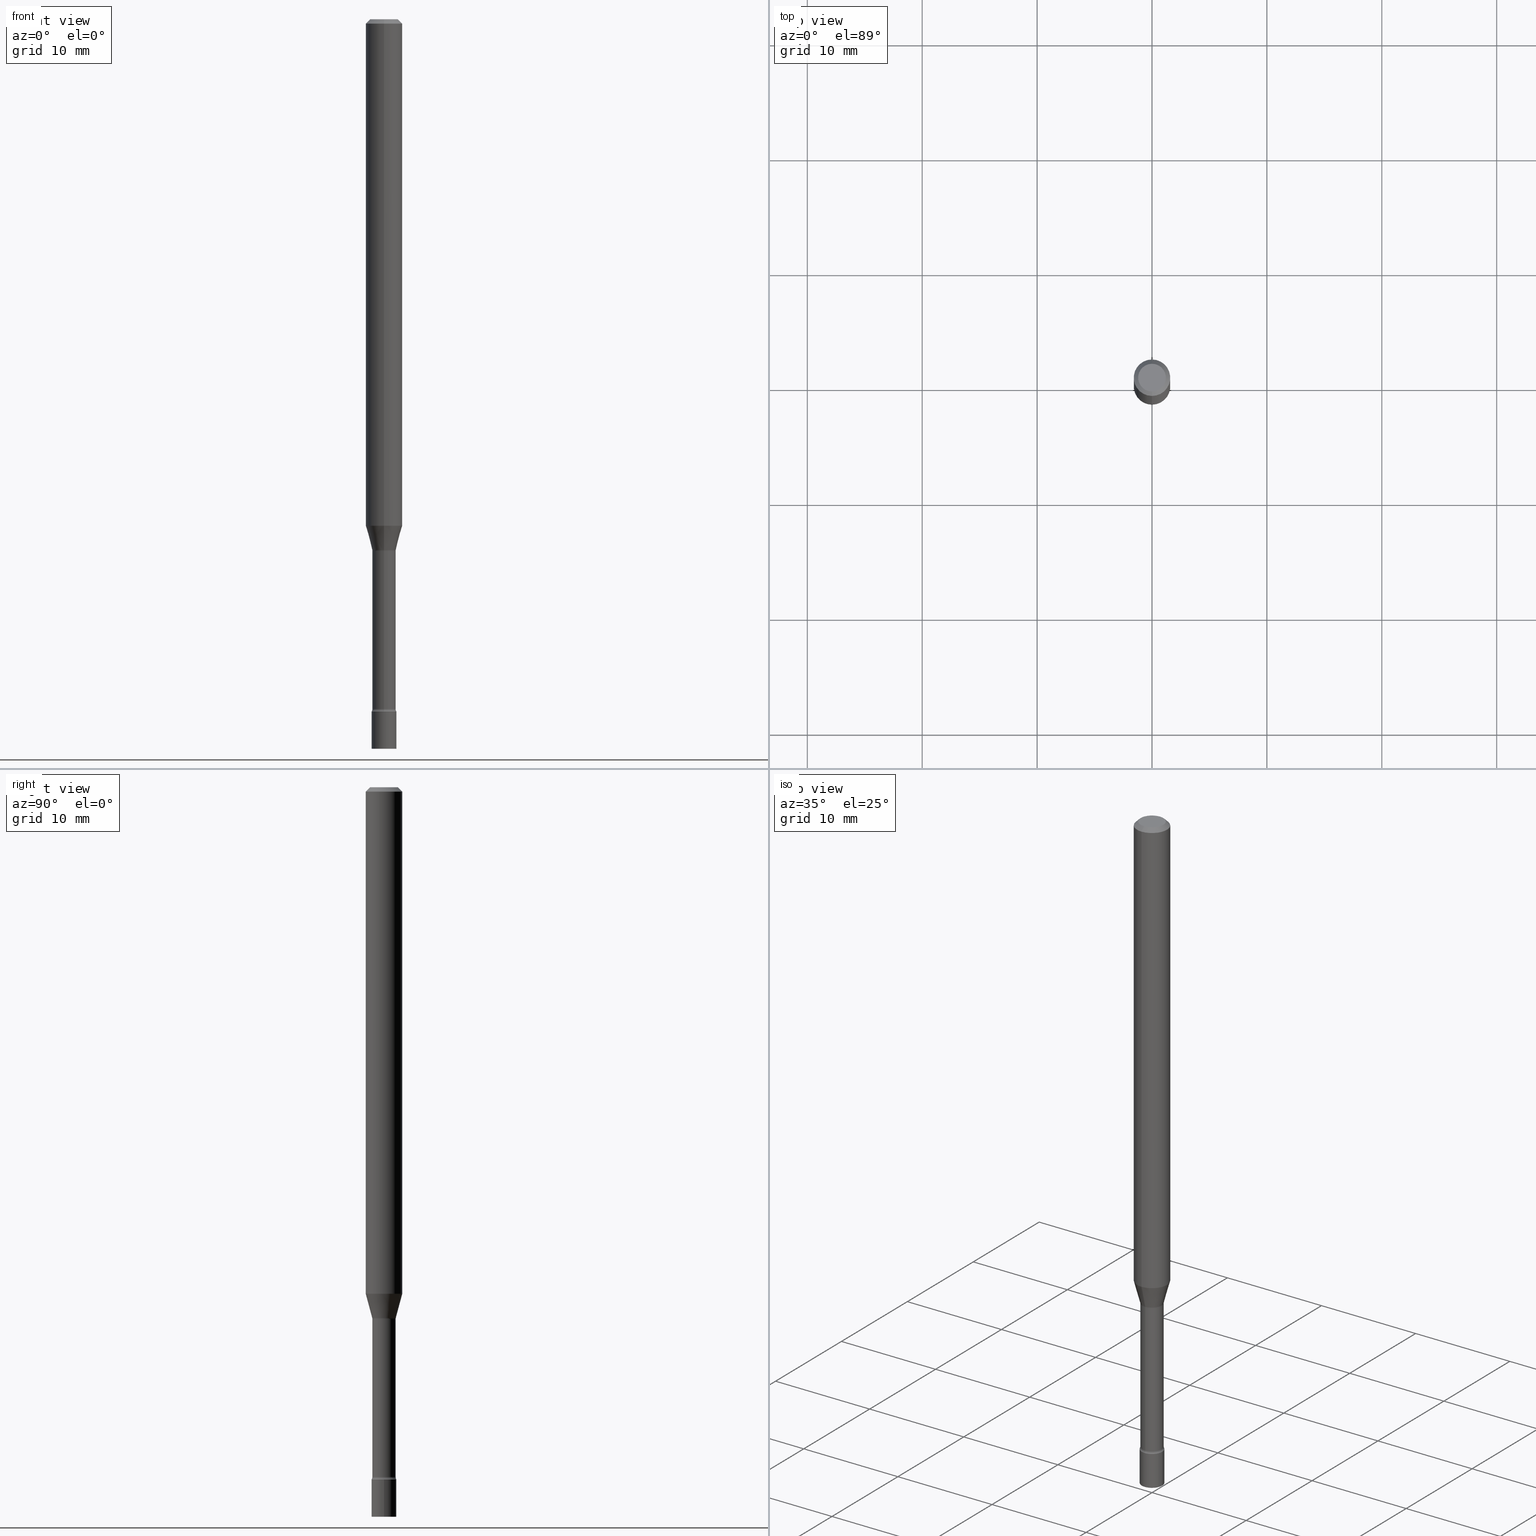
[diagram: canonical four-view strip — front | top / right | iso, engineering-drawing reading convention]
A machine part, canonical four-view strip (front | top / right | iso — engineering-drawing reading convention). The complete STEP part file that produces these views, byte-faithful:
ISO-10303-21;
HEADER;
FILE_DESCRIPTION (( 'STEP AP203' ),
    '1' );
FILE_NAME ('03581.STEP',
    '2024-03-08T21:55:53',
    ( '' ),
    ( '' ),
    'SwSTEP 2.0',
    'SolidWorks 2023',
    '' );
FILE_SCHEMA (( 'CONFIG_CONTROL_DESIGN' ));
ENDSEC;

DATA;
#1 =( GEOMETRIC_REPRESENTATION_CONTEXT ( 3 ) GLOBAL_UNCERTAINTY_ASSIGNED_CONTEXT ( ( #438 ) ) GLOBAL_UNIT_ASSIGNED_CONTEXT ( ( #107, #332, #415 ) ) REPRESENTATION_CONTEXT ( 'NONE', 'WORKASPACE' ) );
#2 = DIRECTION ( 'NONE',  ( -2.445529126728560125E-29, 3.491394956391731301E-15, 1.000000000000000000 ) ) ;
#3 = PERSON ( 'UNSPECIFIED', 'UNSPECIFIED', 'UNSPECIFIED', ('UNSPECIFIED'), ('UNSPECIFIED'), ('UNSPECIFIED') ) ;
#4 = PERSON_AND_ORGANIZATION_ROLE ( 'design_supplier' ) ;
#5 = DIRECTION ( 'NONE',  ( -2.445529126728560125E-29, 3.491394956391731301E-15, 1.000000000000000000 ) ) ;
#6 = CARTESIAN_POINT ( 'NONE',  ( 4.245052792270701556E-29, -6.060510891717392968E-15, -1.735842254289322373 ) ) ;
#7 = CALENDAR_DATE ( 2024, 8, 3 ) ;
#8 = CARTESIAN_POINT ( 'NONE',  ( -2.967759138016082257E-16, -0.04250000000000827421, -2.371999999999999886 ) ) ;
#9 = ORIENTED_EDGE ( 'NONE', *, *, #115, .T. ) ;
#10 = AXIS2_PLACEMENT_3D ( 'NONE', #453, #414, #518 ) ;
#11 = DIRECTION ( 'NONE',  ( -2.445529126728560125E-29, 3.491394956391731301E-15, 1.000000000000000000 ) ) ;
#12 = DIRECTION ( 'NONE',  ( 2.445529126728560125E-29, -3.491394956391731301E-15, -1.000000000000000000 ) ) ;
#13 = CARTESIAN_POINT ( 'NONE',  ( -4.364351673553489723E-16, -0.06250000000000602296, -1.735842254289321929 ) ) ;
#14 = DIRECTION ( 'NONE',  ( -1.807323732225328562E-15, -0.2588190451025179639, 0.9659258262890690894 ) ) ;
#15 = PERSON_AND_ORGANIZATION_ROLE ( 'creator' ) ;
#16 = ADVANCED_FACE ( 'NONE', ( #282 ), #272, .F. ) ;
#17 = DIRECTION ( 'NONE',  ( -2.445468806185136877E-29, 3.491481338843145188E-15, 1.000000000000000000 ) ) ;
#18 = ORIENTED_EDGE ( 'NONE', *, *, #163, .T. ) ;
#19 = ADVANCED_FACE ( 'NONE', ( #46 ), #292, .F. ) ;
#20 = AXIS2_PLACEMENT_3D ( 'NONE', #66, #383, #258 ) ;
#21 = EDGE_LOOP ( 'NONE', ( #312, #95, #454, #154 ) ) ;
#22 = CARTESIAN_POINT ( 'NONE',  ( 0.000000000000000000, 0.000000000000000000, 0.000000000000000000 ) ) ;
#23 = ORIENTED_EDGE ( 'NONE', *, *, #117, .F. ) ;
#24 = ADVANCED_FACE ( 'NONE', ( #487 ), #38, .T. ) ;
#25 = DIRECTION ( 'NONE',  ( -6.982962677686265922E-15, -1.000000000000000000, 6.751786635945950546E-15 ) ) ;
#26 = PERSON_AND_ORGANIZATION ( #3, #316 ) ;
#27 = AXIS2_PLACEMENT_3D ( 'NONE', #162, #289, #367 ) ;
#28 = DIRECTION ( 'NONE',  ( -2.445529126728560125E-29, 3.491394956391731301E-15, 1.000000000000000000 ) ) ;
#29 = CC_DESIGN_APPROVAL ( #507, ( #331 ) ) ;
#30 = ORIENTED_EDGE ( 'NONE', *, *, #202, .T. ) ;
#31 = DIRECTION ( 'NONE',  ( -6.982962677686266711E-15, -1.000000000000000000, 6.427877632151208176E-15 ) ) ;
#32 = ORIENTED_EDGE ( 'NONE', *, *, #76, .F. ) ;
#33 = ORIENTED_EDGE ( 'NONE', *, *, #198, .T. ) ;
#34 = EDGE_CURVE ( 'NONE', #130, #275, #120, .T. ) ;
#35 = CONICAL_SURFACE ( 'NONE', #417, 0.06250000000000000000, 0.7853981633974483900 ) ;
#36 = CARTESIAN_POINT ( 'NONE',  ( 4.245052792270701556E-29, -6.060510891717392968E-15, -1.735842254289322373 ) ) ;
#37 = PRODUCT_DEFINITION_FORMATION_WITH_SPECIFIED_SOURCE ( 'ANY', '', #191, .NOT_KNOWN. ) ;
#38 = CYLINDRICAL_SURFACE ( 'NONE', #82, 0.04249999999999999611 ) ;
#39 = EDGE_CURVE ( 'NONE', #275, #224, #396, .T. ) ;
#40 = AXIS2_PLACEMENT_3D ( 'NONE', #364, #132, #87 ) ;
#41 = FACE_OUTER_BOUND ( 'NONE', #381, .T. ) ;
#42 = LOCAL_TIME ( 16, 55, 53.00000000000000000, #460 ) ;
#43 = DIRECTION ( 'NONE',  ( -6.982962677686265922E-15, -1.000000000000000000, 3.491394956391730907E-15 ) ) ;
#44 = DIRECTION ( 'NONE',  ( 7.105427357601001859E-15, 1.000000000000000000, 0.000000000000000000 ) ) ;
#45 = LINE ( 'NONE', #295, #212 ) ;
#46 = FACE_OUTER_BOUND ( 'NONE', #173, .T. ) ;
#47 = CARTESIAN_POINT ( 'NONE',  ( 0.04249999999999999611, -9.025479260909530016E-15, -2.500000000000000000 ) ) ;
#48 = SECURITY_CLASSIFICATION_LEVEL ( 'unclassified' ) ;
#49 = DIRECTION ( 'NONE',  ( -2.445468806185136597E-29, 3.491481338843145583E-15, 1.000000000000000000 ) ) ;
#50 = CC_DESIGN_PERSON_AND_ORGANIZATION_ASSIGNMENT ( #177, #298, ( #127 ) ) ;
#51 = CONICAL_SURFACE ( 'NONE', #155, 0.04046111260566398471, 0.2617993877991500740 ) ;
#52 = DIRECTION ( 'NONE',  ( -2.445529126728560125E-29, 3.491394956391731301E-15, 1.000000000000000000 ) ) ;
#53 = DIRECTION ( 'NONE',  ( 6.982962677686265922E-15, 1.000000000000000000, -3.491394956391731301E-15 ) ) ;
#54 = ORIENTED_EDGE ( 'NONE', *, *, #39, .T. ) ;
#55 = ADVANCED_FACE ( 'NONE', ( #489 ), #309, .F. ) ;
#56 = DIRECTION ( 'NONE',  ( -2.445529126728560125E-29, 3.491394956391731301E-15, 1.000000000000000000 ) ) ;
#57 = ORIENTED_EDGE ( 'NONE', *, *, #65, .T. ) ;
#58 = AXIS2_PLACEMENT_3D ( 'NONE', #242, #399, #313 ) ;
#59 = APPROVAL_ROLE ( '' ) ;
#60 = AXIS2_PLACEMENT_3D ( 'NONE', #458, #100, #505 ) ;
#61 = ORIENTED_EDGE ( 'NONE', *, *, #395, .F. ) ;
#62 = APPROVAL_STATUS ( 'not_yet_approved' ) ;
#63 = CARTESIAN_POINT ( 'NONE',  ( 4.440892098501054119E-16, 0.06249999999999995837, -0.01500000000000024751 ) ) ;
#64 = ORIENTED_EDGE ( 'NONE', *, *, #88, .T. ) ;
#65 = EDGE_CURVE ( 'NONE', #275, #67, #401, .T. ) ;
#66 = CARTESIAN_POINT ( 'NONE',  ( 5.780334689333618772E-29, -8.252378252224179636E-15, -2.363633549139569467 ) ) ;
#67 = VERTEX_POINT ( 'NONE', #8 ) ;
#68 = AXIS2_PLACEMENT_3D ( 'NONE', #398, #52, #248 ) ;
#69 = DIRECTION ( 'NONE',  ( -2.445529126728560125E-29, 3.491394956391731301E-15, 1.000000000000000000 ) ) ;
#70 = ORIENTED_EDGE ( 'NONE', *, *, #172, .F. ) ;
#71 = CARTESIAN_POINT ( 'NONE',  ( -2.825384392229684454E-16, -0.04046111260567033380, -1.818092501787273108 ) ) ;
#72 = VERTEX_POINT ( 'NONE', #277 ) ;
#73 = DIRECTION ( 'NONE',  ( -2.445529126728560125E-29, 3.491394956391731301E-15, 1.000000000000000000 ) ) ;
#74 = EDGE_CURVE ( 'NONE', #259, #427, #75, .T. ) ;
#75 = CIRCLE ( 'NONE', #520, 0.04249999999999999611 ) ;
#76 = EDGE_CURVE ( 'NONE', #90, #447, #368, .T. ) ;
#77 = DIRECTION ( 'NONE',  ( -2.445529126728560125E-29, 3.491394956391731301E-15, 1.000000000000000000 ) ) ;
#78 = AXIS2_PLACEMENT_3D ( 'NONE', #206, #361, #461 ) ;
#79 = CC_DESIGN_PERSON_AND_ORGANIZATION_ASSIGNMENT ( #217, #15, ( #37 ) ) ;
#80 = DATE_TIME_ROLE ( 'classification_date' ) ;
#81 = DIRECTION ( 'NONE',  ( 1.000000000000000000, -7.105427357601001070E-15, 4.926314450662156010E-29 ) ) ;
#82 = AXIS2_PLACEMENT_3D ( 'NONE', #214, #353, #250 ) ;
#83 = VECTOR ( 'NONE', #423, 39.37007874015748143 ) ;
#84 = ORIENTED_EDGE ( 'NONE', *, *, #88, .F. ) ;
#85 = DIRECTION ( 'NONE',  ( -2.445468806185136597E-29, 3.491481338843145583E-15, 1.000000000000000000 ) ) ;
#86 = CC_DESIGN_PERSON_AND_ORGANIZATION_ASSIGNMENT ( #441, #324, ( #331 ) ) ;
#87 = DIRECTION ( 'NONE',  ( -6.982962677686266711E-15, -1.000000000000000000, 0.000000000000000000 ) ) ;
#88 = EDGE_CURVE ( 'NONE', #112, #422, #146, .T. ) ;
#89 = CALENDAR_DATE ( 2024, 8, 3 ) ;
#90 = VERTEX_POINT ( 'NONE', #13 ) ;
#91 = ADVANCED_FACE ( 'NONE', ( #199 ), #434, .T. ) ;
#92 = DIRECTION ( 'NONE',  ( 6.982962677686265922E-15, 1.000000000000000000, -3.483106191921935554E-15 ) ) ;
#93 = AXIS2_PLACEMENT_3D ( 'NONE', #325, #77, #403 ) ;
#94 = CIRCLE ( 'NONE', #352, 0.04249999999999999611 ) ;
#95 = ORIENTED_EDGE ( 'NONE', *, *, #145, .T. ) ;
#96 = COORDINATED_UNIVERSAL_TIME_OFFSET ( 5, 0, .BEHIND. ) ;
#97 = DIRECTION ( 'NONE',  ( 1.000000000000000000, -6.982962677686254089E-15, 0.000000000000000000 ) ) ;
#98 = ORIENTED_EDGE ( 'NONE', *, *, #74, .F. ) ;
#99 = CARTESIAN_POINT ( 'NONE',  ( 3.668293690092847124E-31, -5.237092434587606985E-17, -0.01500000000000003067 ) ) ;
#100 = DIRECTION ( 'NONE',  ( -2.438088387897960049E-29, 3.491481338843145188E-15, 1.000000000000000000 ) ) ;
#101 = AXIS2_PLACEMENT_3D ( 'NONE', #243, #400, #43 ) ;
#102 = CC_DESIGN_APPROVAL ( #443, ( #37 ) ) ;
#103 = DIRECTION ( 'NONE',  ( -2.445529126728560125E-29, 3.491394956391731301E-15, 1.000000000000000000 ) ) ;
#104 = DIRECTION ( 'NONE',  ( -2.445529126728560125E-29, 3.491394956391731301E-15, 1.000000000000000000 ) ) ;
#105 = EDGE_LOOP ( 'NONE', ( #150, #180, #64, #297 ) ) ;
#106 = CARTESIAN_POINT ( 'NONE',  ( 4.446198168207573651E-29, -6.347678990993710746E-15, -1.818092501787273330 ) ) ;
#107 =( CONVERSION_BASED_UNIT ( 'INCH', #378 ) LENGTH_UNIT ( ) NAMED_UNIT ( #372 ) );
#108 = CARTESIAN_POINT ( 'NONE',  ( 4.440892098501052147E-16, 0.06249999999999397010, -1.735842254289322595 ) ) ;
#109 = ORIENTED_EDGE ( 'NONE', *, *, #34, .T. ) ;
#110 = DIRECTION ( 'NONE',  ( -6.982962677686266711E-15, -1.000000000000000000, 3.491394956391730907E-15 ) ) ;
#111 = CARTESIAN_POINT ( 'NONE',  ( -0.04249999999999999611, -8.203267878723860567E-15, -2.500000000000000000 ) ) ;
#112 = VERTEX_POINT ( 'NONE', #519 ) ;
#113 = VECTOR ( 'NONE', #11, 39.37007874015748143 ) ;
#114 = VECTOR ( 'NONE', #326, 39.37007874015748854 ) ;
#115 = EDGE_CURVE ( 'NONE', #72, #422, #211, .T. ) ;
#116 = ORIENTED_EDGE ( 'NONE', *, *, #205, .F. ) ;
#117 = EDGE_CURVE ( 'NONE', #473, #224, #445, .T. ) ;
#118 = MANIFOLD_SOLID_BREP ( 'Body-Move/Copy2[2]', #301 ) ;
#119 = ADVANCED_FACE ( 'NONE', ( #41 ), #389, .F. ) ;
#120 = CIRCLE ( 'NONE', #376, 0.03995000000000006879 ) ;
#121 = DIRECTION ( 'NONE',  ( -6.982962677686265922E-15, -1.000000000000000000, 3.491394956391731301E-15 ) ) ;
#122 = APPLICATION_CONTEXT ( 'configuration controlled 3d designs of mechanical parts and assemblies' ) ;
#123 = DIRECTION ( 'NONE',  ( 2.445529126728560125E-29, -3.491394956391731301E-15, -1.000000000000000000 ) ) ;
#124 = EDGE_CURVE ( 'NONE', #430, #224, #358, .T. ) ;
#125 = CYLINDRICAL_SURFACE ( 'NONE', #101, 0.06250000000000000000 ) ;
#126 = COORDINATED_UNIVERSAL_TIME_OFFSET ( 5, 0, .BEHIND. ) ;
#127 = PRODUCT_DEFINITION ( 'UNKNOWN', '', #37, #240 ) ;
#128 = CIRCLE ( 'NONE', #475, 0.04249999999999999611 ) ;
#129 = ORIENTED_EDGE ( 'NONE', *, *, #385, .T. ) ;
#130 = VERTEX_POINT ( 'NONE', #253 ) ;
#131 = EDGE_CURVE ( 'NONE', #473, #90, #45, .T. ) ;
#132 = DIRECTION ( 'NONE',  ( -1.000000000000000000, 6.982962677686265922E-15, -4.883557194083112901E-29 ) ) ;
#133 = VERTEX_POINT ( 'NONE', #362 ) ;
#134 = CC_DESIGN_DATE_AND_TIME_ASSIGNMENT ( #480, #80, ( #331 ) ) ;
#135 = DIRECTION ( 'NONE',  ( -6.982962677686265922E-15, -1.000000000000000000, 6.751786635945950546E-15 ) ) ;
#136 = ORIENTED_EDGE ( 'NONE', *, *, #432, .F. ) ;
#137 = AXIS2_PLACEMENT_3D ( 'NONE', #235, #73, #121 ) ;
#138 = AXIS2_PLACEMENT_3D ( 'NONE', #306, #270, #466 ) ;
#139 = CYLINDRICAL_SURFACE ( 'NONE', #10, 0.03995000000000004103 ) ;
#140 = ORIENTED_EDGE ( 'NONE', *, *, #280, .F. ) ;
#141 = DIRECTION ( 'NONE',  ( -6.982962677686265922E-15, -1.000000000000000000, 3.491394956391730907E-15 ) ) ;
#142 = ORIENTED_EDGE ( 'NONE', *, *, #385, .F. ) ;
#143 = FACE_OUTER_BOUND ( 'NONE', #424, .T. ) ;
#144 = ORIENTED_EDGE ( 'NONE', *, *, #34, .F. ) ;
#145 = EDGE_CURVE ( 'NONE', #418, #269, #428, .T. ) ;
#146 = CIRCLE ( 'NONE', #68, 0.06250000000000000000 ) ;
#147 = AXIS2_PLACEMENT_3D ( 'NONE', #228, #181, #97 ) ;
#148 = DATE_AND_TIME ( #382, #320 ) ;
#149 = CARTESIAN_POINT ( 'NONE',  ( -0.04249999999999999611, -8.203267878723860567E-15, -2.371999999999999886 ) ) ;
#150 = ORIENTED_EDGE ( 'NONE', *, *, #342, .F. ) ;
#151 = ADVANCED_FACE ( 'NONE', ( #464 ), #51, .T. ) ;
#152 = LINE ( 'NONE', #335, #83 ) ;
#153 = ORIENTED_EDGE ( 'NONE', *, *, #197, .F. ) ;
#154 = ORIENTED_EDGE ( 'NONE', *, *, #198, .F. ) ;
#155 = AXIS2_PLACEMENT_3D ( 'NONE', #106, #386, #25 ) ;
#156 = CARTESIAN_POINT ( 'NONE',  ( 3.668293690092847124E-31, -5.237092434587606985E-17, -0.01500000000000003067 ) ) ;
#157 = AXIS2_PLACEMENT_3D ( 'NONE', #288, #409, #53 ) ;
#158 = ORIENTED_EDGE ( 'NONE', *, *, #124, .F. ) ;
#159 = CARTESIAN_POINT ( 'NONE',  ( 4.455582508398544114E-29, -6.361390970272603150E-15, -1.821974787463811252 ) ) ;
#160 = DIRECTION ( 'NONE',  ( -6.982962677686265133E-15, -1.000000000000000000, 6.838167693777868349E-15 ) ) ;
#161 = CARTESIAN_POINT ( 'NONE',  ( -4.364351673553916201E-16, -0.06250000000000000000, 2.182121847744831817E-16 ) ) ;
#162 = CARTESIAN_POINT ( 'NONE',  ( -3.837137991388157681E-16, -0.05495000000000636875, -1.821974787463811030 ) ) ;
#163 = EDGE_CURVE ( 'NONE', #72, #511, #285, .T. ) ;
#164 = AXIS2_PLACEMENT_3D ( 'NONE', #239, #283, #360 ) ;
#165 = CIRCLE ( 'NONE', #237, 0.04046111260566398471 ) ;
#166 = CYLINDRICAL_SURFACE ( 'NONE', #186, 0.06250000000000000000 ) ;
#167 = FACE_OUTER_BOUND ( 'NONE', #249, .T. ) ;
#168 = ADVANCED_FACE ( 'NONE', ( #425 ), #35, .T. ) ;
#169 = CARTESIAN_POINT ( 'NONE',  ( 6.113672015462842613E-29, -8.728703347107864943E-15, -2.500000000000000000 ) ) ;
#170 = DIRECTION ( 'NONE',  ( 1.000000000000000000, -6.982962677686276177E-15, 0.000000000000000000 ) ) ;
#171 = ORIENTED_EDGE ( 'NONE', *, *, #209, .F. ) ;
#172 = EDGE_CURVE ( 'NONE', #224, #430, #452, .T. ) ;
#173 = EDGE_LOOP ( 'NONE', ( #476, #178, #229, #23 ) ) ;
#174 = CARTESIAN_POINT ( 'NONE',  ( 2.874934964273040567E-16, 0.04046111260565763562, -1.818092501787273552 ) ) ;
#175 = ADVANCED_FACE ( 'NONE', ( #440 ), #207, .T. ) ;
#176 = DIRECTION ( 'NONE',  ( -6.982962677686265922E-15, -1.000000000000000000, 3.491394956391731301E-15 ) ) ;
#177 = PERSON_AND_ORGANIZATION ( #3, #316 ) ;
#178 = ORIENTED_EDGE ( 'NONE', *, *, #321, .T. ) ;
#179 = CIRCLE ( 'NONE', #147, 0.04249999999999999611 ) ;
#180 = ORIENTED_EDGE ( 'NONE', *, *, #393, .T. ) ;
#181 = DIRECTION ( 'NONE',  ( -2.445468806185136597E-29, 3.491481338843145583E-15, 1.000000000000000000 ) ) ;
#182 = ORIENTED_EDGE ( 'NONE', *, *, #432, .T. ) ;
#183 = CALENDAR_DATE ( 2024, 8, 3 ) ;
#184 = CYLINDRICAL_SURFACE ( 'NONE', #436, 0.03995000000000004103 ) ;
#185 = ORIENTED_EDGE ( 'NONE', *, *, #205, .T. ) ;
#186 = AXIS2_PLACEMENT_3D ( 'NONE', #420, #219, #141 ) ;
#187 = APPLICATION_PROTOCOL_DEFINITION ( 'international standard', 'config_control_design', 1994, #356 ) ;
#188 = DIRECTION ( 'NONE',  ( -2.445529126728560125E-29, 3.491394956391731301E-15, 1.000000000000000000 ) ) ;
#189 = ORIENTED_EDGE ( 'NONE', *, *, #274, .T. ) ;
#190 = ORIENTED_EDGE ( 'NONE', *, *, #483, .T. ) ;
#191 = PRODUCT ( '03581', '03581', '', ( #264 ) ) ;
#192 = EDGE_LOOP ( 'NONE', ( #144, #30, #271, #408 ) ) ;
#193 = AXIS2_PLACEMENT_3D ( 'NONE', #405, #357, #354 ) ;
#194 = CIRCLE ( 'NONE', #193, 0.01499999999999999424 ) ;
#195 = CIRCLE ( 'NONE', #486, 0.06250000000000000000 ) ;
#196 = CARTESIAN_POINT ( 'NONE',  ( 4.364351673553919652E-16, 0.06249999999999995143, -0.01500000000000024751 ) ) ;
#197 = EDGE_CURVE ( 'NONE', #447, #90, #230, .T. ) ;
#198 = EDGE_CURVE ( 'NONE', #427, #259, #341, .T. ) ;
#199 = FACE_OUTER_BOUND ( 'NONE', #21, .T. ) ;
#200 = CARTESIAN_POINT ( 'NONE',  ( 5.800652008271143730E-29, -8.281793735735941096E-15, -2.371999999999999886 ) ) ;
#201 = DIRECTION ( 'NONE',  ( -6.982962677686265922E-15, -1.000000000000000000, 3.491394956391731301E-15 ) ) ;
#202 = EDGE_CURVE ( 'NONE', #130, #348, #194, .T. ) ;
#203 = AXIS2_PLACEMENT_3D ( 'NONE', #22, #413, #220 ) ;
#204 = LINE ( 'NONE', #444, #485 ) ;
#205 = EDGE_CURVE ( 'NONE', #90, #112, #517, .T. ) ;
#206 = CARTESIAN_POINT ( 'NONE',  ( 7.071984575478503804E-46, -1.009642085577430912E-31, -2.891801409431119531E-17 ) ) ;
#207 = PLANE ( 'NONE',  #58 ) ;
#208 = ADVANCED_FACE ( 'NONE', ( #167 ), #125, .T. ) ;
#209 = EDGE_CURVE ( 'NONE', #447, #422, #204, .T. ) ;
#210 = ORIENTED_EDGE ( 'NONE', *, *, #236, .T. ) ;
#211 = LINE ( 'NONE', #196, #262 ) ;
#212 = VECTOR ( 'NONE', #14, 39.37007874015748854 ) ;
#213 = APPROVAL_DATE_TIME ( #247, #507 ) ;
#214 = CARTESIAN_POINT ( 'NONE',  ( 0.000000000000000000, 0.000000000000000000, 0.000000000000000000 ) ) ;
#215 = CARTESIAN_POINT ( 'NONE',  ( 4.446198168207573651E-29, -6.347678990993710746E-15, -1.818092501787273330 ) ) ;
#216 = ADVANCED_FACE ( 'NONE', ( #290 ), #166, .T. ) ;
#217 = PERSON_AND_ORGANIZATION ( #3, #316 ) ;
#218 = CARTESIAN_POINT ( 'NONE',  ( -2.789693589735089879E-16, -0.03995000000000831913, -2.363633549139569023 ) ) ;
#219 = DIRECTION ( 'NONE',  ( -2.445529126728560125E-29, 3.491394956391731301E-15, 1.000000000000000000 ) ) ;
#220 = DIRECTION ( 'NONE',  ( 1.000000000000000000, 0.000000000000000000, 0.000000000000000000 ) ) ;
#221 = AXIS2_PLACEMENT_3D ( 'NONE', #479, #431, #176 ) ;
#222 = ADVANCED_FACE ( 'NONE', ( #455 ), #446, .T. ) ;
#223 = APPLICATION_PROTOCOL_DEFINITION ( 'international standard', 'config_control_design', 1994, #122 ) ;
#224 = VERTEX_POINT ( 'NONE', #329 ) ;
#225 = PERSON_AND_ORGANIZATION ( #3, #316 ) ;
#226 = CARTESIAN_POINT ( 'NONE',  ( 2.838618229362180999E-16, 0.03994999999999365725, -1.821974787463811474 ) ) ;
#227 = ORIENTED_EDGE ( 'NONE', *, *, #483, .F. ) ;
#228 = CARTESIAN_POINT ( 'NONE',  ( 6.113672015462842613E-29, -8.728703347107864943E-15, -2.500000000000000000 ) ) ;
#229 = ORIENTED_EDGE ( 'NONE', *, *, #124, .T. ) ;
#230 = CIRCLE ( 'NONE', #279, 0.06250000000000000000 ) ;
#231 = DIRECTION ( 'NONE',  ( -6.982962677686266711E-15, -1.000000000000000000, 6.427877632151208176E-15 ) ) ;
#232 = ORIENTED_EDGE ( 'NONE', *, *, #202, .F. ) ;
#233 = ORIENTED_EDGE ( 'NONE', *, *, #117, .T. ) ;
#234 = ADVANCED_BREP_SHAPE_REPRESENTATION ( '03581', ( #456, #118, #203 ), #1 ) ;
#235 = CARTESIAN_POINT ( 'NONE',  ( 4.455582508398544114E-29, -6.361390970272603150E-15, -1.821974787463811252 ) ) ;
#236 = EDGE_CURVE ( 'NONE', #418, #427, #291, .T. ) ;
#237 = AXIS2_PLACEMENT_3D ( 'NONE', #215, #370, #135 ) ;
#238 = CARTESIAN_POINT ( 'NONE',  ( -2.789693589735665748E-16, -0.03995000000000004103, 1.394812285078498032E-16 ) ) ;
#239 = CARTESIAN_POINT ( 'NONE',  ( 4.455692410907827704E-29, -6.361233583624047089E-15, -1.821974787463811252 ) ) ;
#240 = DESIGN_CONTEXT ( 'detailed design', #356, 'design' ) ;
#241 = EDGE_CURVE ( 'NONE', #130, #430, #251, .T. ) ;
#242 = CARTESIAN_POINT ( 'NONE',  ( 2.967759138017274423E-16, 0.04249999999999127392, -2.500000000000000000 ) ) ;
#243 = CARTESIAN_POINT ( 'NONE',  ( 0.000000000000000000, 0.000000000000000000, 0.000000000000000000 ) ) ;
#244 = CC_DESIGN_SECURITY_CLASSIFICATION ( #331, ( #37 ) ) ;
#245 = FACE_OUTER_BOUND ( 'NONE', #506, .T. ) ;
#246 = DIRECTION ( 'NONE',  ( 1.000000000000000000, -6.982962677686276177E-15, 0.000000000000000000 ) ) ;
#247 = DATE_AND_TIME ( #89, #397 ) ;
#248 = DIRECTION ( 'NONE',  ( -6.982962677686265922E-15, -1.000000000000000000, 3.483106191921935554E-15 ) ) ;
#249 = EDGE_LOOP ( 'NONE', ( #171, #491, #185, #227 ) ) ;
#250 = DIRECTION ( 'NONE',  ( 1.000000000000000000, -6.982962677686267499E-15, 4.876176775795935793E-29 ) ) ;
#251 = LINE ( 'NONE', #488, #419 ) ;
#252 = AXIS2_PLACEMENT_3D ( 'NONE', #406, #49, #355 ) ;
#253 = CARTESIAN_POINT ( 'NONE',  ( 2.929212428171594149E-16, 0.03994999999999181151, -2.363633549139569912 ) ) ;
#254 = APPROVAL_PERSON_ORGANIZATION ( #433, #507, #493 ) ;
#255 = CARTESIAN_POINT ( 'NONE',  ( -0.04249999999999999611, 3.019806626980425514E-16, -2.090547413358334859E-30 ) ) ;
#256 = ORIENTED_EDGE ( 'NONE', *, *, #145, .F. ) ;
#257 = APPROVAL_DATE_TIME ( #148, #443 ) ;
#258 = DIRECTION ( 'NONE',  ( -6.982962677686265133E-15, -1.000000000000000000, 6.838167693777868349E-15 ) ) ;
#259 = VERTEX_POINT ( 'NONE', #404 ) ;
#260 = EDGE_CURVE ( 'NONE', #133, #447, #482, .T. ) ;
#261 = ORIENTED_EDGE ( 'NONE', *, *, #260, .F. ) ;
#262 = VECTOR ( 'NONE', #328, 39.37007874015748143 ) ;
#263 = CC_DESIGN_APPROVAL ( #365, ( #127 ) ) ;
#264 = MECHANICAL_CONTEXT ( 'NONE', #122, 'mechanical' ) ;
#265 = ADVANCED_FACE ( 'NONE', ( #245 ), #490, .F. ) ;
#266 = EDGE_LOOP ( 'NONE', ( #189, #467, #32, #463 ) ) ;
#267 = CC_DESIGN_PERSON_AND_ORGANIZATION_ASSIGNMENT ( #26, #457, ( #191 ) ) ;
#268 = CARTESIAN_POINT ( 'NONE',  ( 4.446198168207573651E-29, -6.347678990993710746E-15, -1.818092501787273330 ) ) ;
#269 = VERTEX_POINT ( 'NONE', #47 ) ;
#270 = DIRECTION ( 'NONE',  ( -2.445529126728559564E-29, 3.491394956391731301E-15, 1.000000000000000000 ) ) ;
#271 = ORIENTED_EDGE ( 'NONE', *, *, #395, .T. ) ;
#272 = TOROIDAL_SURFACE ( 'NONE', #93, 0.05495000000000006130, 0.01499999999999999424 ) ;
#273 = LOCAL_TIME ( 16, 55, 53.00000000000000000, #96 ) ;
#274 = EDGE_CURVE ( 'NONE', #473, #133, #165, .T. ) ;
#275 = VERTEX_POINT ( 'NONE', #218 ) ;
#276 = EDGE_LOOP ( 'NONE', ( #307, #336, #9, #190 ) ) ;
#277 = CARTESIAN_POINT ( 'NONE',  ( 3.840629472727447874E-16, 0.04749999999999999362, -1.947592745229184365E-16 ) ) ;
#278 = DIRECTION ( 'NONE',  ( -2.445529126728560125E-29, 3.491394956391731301E-15, 1.000000000000000000 ) ) ;
#279 = AXIS2_PLACEMENT_3D ( 'NONE', #6, #448, #363 ) ;
#280 = EDGE_CURVE ( 'NONE', #269, #259, #442, .T. ) ;
#281 = APPROVAL_PERSON_ORGANIZATION ( #225, #443, #305 ) ;
#282 = FACE_OUTER_BOUND ( 'NONE', #192, .T. ) ;
#283 = DIRECTION ( 'NONE',  ( -2.445529126728560125E-29, 3.491394956391731301E-15, 1.000000000000000000 ) ) ;
#284 = CARTESIAN_POINT ( 'NONE',  ( 3.904432333002196639E-16, 0.05494999999999364976, -1.821974787463811474 ) ) ;
#285 = CIRCLE ( 'NONE', #504, 0.04749999999999999362 ) ;
#286 = CIRCLE ( 'NONE', #462, 0.01500000000000002720 ) ;
#287 = CARTESIAN_POINT ( 'NONE',  ( 5.800652008271143730E-29, -8.281793735735941096E-15, -2.371999999999999886 ) ) ;
#288 = CARTESIAN_POINT ( 'NONE',  ( 3.316907271900976096E-16, 0.04749999999999999362, -1.803002674757628327E-16 ) ) ;
#289 = DIRECTION ( 'NONE',  ( -1.000000000000000000, 6.982962677686265922E-15, -4.883557194083112901E-29 ) ) ;
#290 = FACE_OUTER_BOUND ( 'NONE', #351, .T. ) ;
#291 = LINE ( 'NONE', #255, #496 ) ;
#292 = TOROIDAL_SURFACE ( 'NONE', #137, 0.05495000000000000578, 0.01500000000000002720 ) ;
#293 = APPROVAL_PERSON_ORGANIZATION ( #334, #365, #59 ) ;
#294 = DIRECTION ( 'NONE',  ( -6.982962677686265133E-15, -1.000000000000000000, 3.491394956391731301E-15 ) ) ;
#295 = CARTESIAN_POINT ( 'NONE',  ( -2.825384392229684454E-16, -0.04046111260567033380, -1.818092501787273108 ) ) ;
#296 = ORIENTED_EDGE ( 'NONE', *, *, #347, .T. ) ;
#297 = ORIENTED_EDGE ( 'NONE', *, *, #115, .F. ) ;
#298 = PERSON_AND_ORGANIZATION_ROLE ( 'creator' ) ;
#299 = CARTESIAN_POINT ( 'NONE',  ( 5.800795088600143688E-29, -8.281588836561186447E-15, -2.371999999999999886 ) ) ;
#300 = EDGE_LOOP ( 'NONE', ( #472, #61 ) ) ;
#301 = CLOSED_SHELL ( 'NONE', ( #19, #346, #16, #222, #216, #151, #350, #208, #168, #265, #437, #55, #470, #119 ) ) ;
#302 = DIRECTION ( 'NONE',  ( 1.000000000000000000, -6.982962677686254089E-15, 0.000000000000000000 ) ) ;
#303 = PLANE ( 'NONE',  #138 ) ;
#304 = EDGE_LOOP ( 'NONE', ( #261, #296, #392, #153 ) ) ;
#305 = APPROVAL_ROLE ( '' ) ;
#306 = CARTESIAN_POINT ( 'NONE',  ( 2.967759138017242869E-16, 0.04249999999999171801, -2.372000000000000330 ) ) ;
#307 = ORIENTED_EDGE ( 'NONE', *, *, #393, .F. ) ;
#308 = ORIENTED_EDGE ( 'NONE', *, *, #172, .T. ) ;
#309 = TOROIDAL_SURFACE ( 'NONE', #221, 0.05495000000000006130, 0.01499999999999999424 ) ;
#310 = AXIS2_PLACEMENT_3D ( 'NONE', #268, #188, #502 ) ;
#311 = ORIENTED_EDGE ( 'NONE', *, *, #241, .F. ) ;
#312 = ORIENTED_EDGE ( 'NONE', *, *, #236, .F. ) ;
#313 = DIRECTION ( 'NONE',  ( -1.000000000000000000, 6.982962677686265922E-15, -4.876176775795935793E-29 ) ) ;
#314 = DIRECTION ( 'NONE',  ( -6.982962677686265922E-15, -1.000000000000000000, 4.370956789862821150E-15 ) ) ;
#315 = CLOSED_SHELL ( 'NONE', ( #24, #379, #91, #175 ) ) ;
#316 = ORGANIZATION ( 'UNSPECIFIED', 'UNSPECIFIED', '' ) ;
#317 = DIRECTION ( 'NONE',  ( 6.982962677686265922E-15, 1.000000000000000000, -3.483106191921935554E-15 ) ) ;
#318 = DIRECTION ( 'NONE',  ( -2.445529126728560125E-29, 3.491394956391731301E-15, 1.000000000000000000 ) ) ;
#319 = VECTOR ( 'NONE', #2, 39.37007874015748143 ) ;
#320 = LOCAL_TIME ( 16, 55, 53.00000000000000000, #469 ) ;
#321 = EDGE_CURVE ( 'NONE', #133, #430, #286, .T. ) ;
#322 = ORIENTED_EDGE ( 'NONE', *, *, #74, .T. ) ;
#323 = CARTESIAN_POINT ( 'NONE',  ( 4.455692410907827704E-29, -6.361233583624047089E-15, -1.821974787463811252 ) ) ;
#324 = PERSON_AND_ORGANIZATION_ROLE ( 'classification_officer' ) ;
#325 = CARTESIAN_POINT ( 'NONE',  ( 5.780192113673480765E-29, -8.252582428684399354E-15, -2.363633549139569467 ) ) ;
#326 = DIRECTION ( 'NONE',  ( 1.839019923739598738E-15, 0.2588190451025247363, 0.9659258262890673130 ) ) ;
#327 = ORIENTED_EDGE ( 'NONE', *, *, #321, .F. ) ;
#328 = DIRECTION ( 'NONE',  ( 4.937700262164548042E-15, 0.7071067811865451302, -0.7071067811865499042 ) ) ;
#329 = CARTESIAN_POINT ( 'NONE',  ( -2.789693589735218069E-16, -0.03995000000000637624, -1.821974787463811030 ) ) ;
#330 = AXIS2_PLACEMENT_3D ( 'NONE', #159, #516, #201 ) ;
#331 = SECURITY_CLASSIFICATION ( '', '', #48 ) ;
#332 =( NAMED_UNIT ( * ) PLANE_ANGLE_UNIT ( ) SI_UNIT ( $, .RADIAN. ) );
#333 = EDGE_LOOP ( 'NONE', ( #311, #109, #54, #158 ) ) ;
#334 = PERSON_AND_ORGANIZATION ( #3, #316 ) ;
#335 = CARTESIAN_POINT ( 'NONE',  ( -4.287811248607203282E-16, -0.06250000000000005551, -0.01499999999999981209 ) ) ;
#336 = ORIENTED_EDGE ( 'NONE', *, *, #163, .F. ) ;
#337 = DIRECTION ( 'NONE',  ( -2.445468806185136597E-29, 3.491481338843145583E-15, 1.000000000000000000 ) ) ;
#338 = DATE_AND_TIME ( #183, #273 ) ;
#339 = FACE_OUTER_BOUND ( 'NONE', #300, .T. ) ;
#340 = ORIENTED_EDGE ( 'NONE', *, *, #450, .T. ) ;
#341 = CIRCLE ( 'NONE', #474, 0.04249999999999999611 ) ;
#342 = EDGE_CURVE ( 'NONE', #511, #72, #429, .T. ) ;
#343 = CONICAL_SURFACE ( 'NONE', #514, 0.04046111260566398471, 0.2617993877991500740 ) ;
#344 = CALENDAR_DATE ( 2024, 8, 3 ) ;
#345 = CARTESIAN_POINT ( 'NONE',  ( 3.019806626981004834E-16, 0.04249999999999171107, -2.372000000000000330 ) ) ;
#346 = ADVANCED_FACE ( 'NONE', ( #499 ), #184, .T. ) ;
#347 = EDGE_CURVE ( 'NONE', #133, #473, #402, .T. ) ;
#348 = VERTEX_POINT ( 'NONE', #345 ) ;
#349 = PRODUCT_DEFINITION_SHAPE ( 'NONE', 'NONE',  #127 ) ;
#350 = ADVANCED_FACE ( 'NONE', ( #380 ), #343, .T. ) ;
#351 = EDGE_LOOP ( 'NONE', ( #366, #498, #84, #116 ) ) ;
#352 = AXIS2_PLACEMENT_3D ( 'NONE', #299, #104, #31 ) ;
#353 = DIRECTION ( 'NONE',  ( -2.445468806185136597E-29, 3.491481338843145583E-15, 1.000000000000000000 ) ) ;
#354 = DIRECTION ( 'NONE',  ( 7.105427357601001859E-15, 1.000000000000000000, 0.000000000000000000 ) ) ;
#355 = DIRECTION ( 'NONE',  ( 1.000000000000000000, -6.982962677686267499E-15, 4.876176775795935793E-29 ) ) ;
#356 = APPLICATION_CONTEXT ( 'configuration controlled 3d designs of mechanical parts and assemblies' ) ;
#357 = DIRECTION ( 'NONE',  ( 1.000000000000000000, -7.105427357601001070E-15, 4.926314450662156010E-29 ) ) ;
#358 = CIRCLE ( 'NONE', #435, 0.03995000000000001328 ) ;
#359 = VECTOR ( 'NONE', #17, 39.37007874015748143 ) ;
#360 = DIRECTION ( 'NONE',  ( -6.982962677686265922E-15, -1.000000000000000000, 6.838167693777877816E-15 ) ) ;
#361 = DIRECTION ( 'NONE',  ( -2.445529126728560125E-29, 3.491394956391731301E-15, 1.000000000000000000 ) ) ;
#362 = CARTESIAN_POINT ( 'NONE',  ( 3.657913531387045124E-16, 0.04046111260565763562, -1.818092501787273552 ) ) ;
#363 = DIRECTION ( 'NONE',  ( -6.982962677686265922E-15, -1.000000000000000000, 4.370956789862821150E-15 ) ) ;
#364 = CARTESIAN_POINT ( 'NONE',  ( -3.837137991388029492E-16, -0.05495000000000831858, -2.363633549139569023 ) ) ;
#365 = APPROVAL ( #62, 'UNSPECIFIED' ) ;
#366 = ORIENTED_EDGE ( 'NONE', *, *, #76, .T. ) ;
#367 = DIRECTION ( 'NONE',  ( -6.982962677686267499E-15, -1.000000000000000000, 0.000000000000000000 ) ) ;
#368 = CIRCLE ( 'NONE', #416, 0.06250000000000000000 ) ;
#369 = CIRCLE ( 'NONE', #20, 0.03995000000000006879 ) ;
#370 = DIRECTION ( 'NONE',  ( -2.445529126728560125E-29, 3.491394956391731301E-15, 1.000000000000000000 ) ) ;
#371 = APPROVAL_STATUS ( 'not_yet_approved' ) ;
#372 = DIMENSIONAL_EXPONENTS ( 1.000000000000000000, 0.000000000000000000, 0.000000000000000000, 0.000000000000000000, 0.000000000000000000, 0.000000000000000000, 0.000000000000000000 ) ;
#373 = EDGE_LOOP ( 'NONE', ( #232, #136, #57, #340 ) ) ;
#374 =( LENGTH_UNIT ( ) NAMED_UNIT ( * ) SI_UNIT ( $, .METRE. ) );
#375 = PLANE ( 'NONE',  #60 ) ;
#376 = AXIS2_PLACEMENT_3D ( 'NONE', #515, #477, #160 ) ;
#377 = AXIS2_PLACEMENT_3D ( 'NONE', #99, #12, #92 ) ;
#378 = LENGTH_MEASURE_WITH_UNIT ( LENGTH_MEASURE( 0.02539999999999999897 ), #374 );
#379 = ADVANCED_FACE ( 'NONE', ( #143 ), #375, .T. ) ;
#380 = FACE_OUTER_BOUND ( 'NONE', #304, .T. ) ;
#381 = EDGE_LOOP ( 'NONE', ( #327, #394, #233, #308 ) ) ;
#382 = CALENDAR_DATE ( 2024, 8, 3 ) ;
#383 = DIRECTION ( 'NONE',  ( -2.445529126728560125E-29, 3.491394956391731301E-15, 1.000000000000000000 ) ) ;
#384 = ORIENTED_EDGE ( 'NONE', *, *, #342, .T. ) ;
#385 = EDGE_CURVE ( 'NONE', #269, #418, #179, .T. ) ;
#386 = DIRECTION ( 'NONE',  ( -2.445529126728560125E-29, 3.491394956391731301E-15, 1.000000000000000000 ) ) ;
#387 = CARTESIAN_POINT ( 'NONE',  ( 5.800795088600143688E-29, -8.281588836561186447E-15, -2.371999999999999886 ) ) ;
#388 = ORIENTED_EDGE ( 'NONE', *, *, #241, .T. ) ;
#389 = TOROIDAL_SURFACE ( 'NONE', #330, 0.05495000000000000578, 0.01500000000000002720 ) ;
#390 = LOCAL_TIME ( 16, 55, 53.00000000000000000, #126 ) ;
#391 = FACE_OUTER_BOUND ( 'NONE', #333, .T. ) ;
#392 = ORIENTED_EDGE ( 'NONE', *, *, #131, .T. ) ;
#393 = EDGE_CURVE ( 'NONE', #511, #112, #152, .T. ) ;
#394 = ORIENTED_EDGE ( 'NONE', *, *, #274, .F. ) ;
#395 = EDGE_CURVE ( 'NONE', #348, #67, #94, .T. ) ;
#396 = LINE ( 'NONE', #238, #113 ) ;
#397 = LOCAL_TIME ( 16, 55, 53.00000000000000000, #451 ) ;
#398 = CARTESIAN_POINT ( 'NONE',  ( 3.668293690092847124E-31, -5.237092434587606985E-17, -0.01500000000000003067 ) ) ;
#399 = DIRECTION ( 'NONE',  ( 2.438088387897960049E-29, -3.491481338843145188E-15, -1.000000000000000000 ) ) ;
#400 = DIRECTION ( 'NONE',  ( -2.445529126728560125E-29, 3.491394956391731301E-15, 1.000000000000000000 ) ) ;
#401 = CIRCLE ( 'NONE', #40, 0.01499999999999999424 ) ;
#402 = CIRCLE ( 'NONE', #310, 0.04046111260566398471 ) ;
#403 = DIRECTION ( 'NONE',  ( -6.982962677686265922E-15, -1.000000000000000000, 3.491394956391731301E-15 ) ) ;
#404 = CARTESIAN_POINT ( 'NONE',  ( 0.04249999999999999611, -8.578569649537607747E-15, -2.371999999999999886 ) ) ;
#405 = CARTESIAN_POINT ( 'NONE',  ( 3.904432333002332224E-16, 0.05494999999999180401, -2.363633549139569912 ) ) ;
#406 = CARTESIAN_POINT ( 'NONE',  ( 0.000000000000000000, 0.000000000000000000, 0.000000000000000000 ) ) ;
#407 = SHAPE_DEFINITION_REPRESENTATION ( #349, #234 ) ;
#408 = ORIENTED_EDGE ( 'NONE', *, *, #65, .F. ) ;
#409 = DIRECTION ( 'NONE',  ( 2.445529126728559564E-29, -3.491394956391731301E-15, -1.000000000000000000 ) ) ;
#410 = DIRECTION ( 'NONE',  ( -6.982962677686265922E-15, -1.000000000000000000, 3.483106191921935554E-15 ) ) ;
#411 = DIRECTION ( 'NONE',  ( -2.445468806185136877E-29, 3.491481338843145188E-15, 1.000000000000000000 ) ) ;
#412 = DIRECTION ( 'NONE',  ( -6.982962677686265922E-15, -1.000000000000000000, 6.838167693777877816E-15 ) ) ;
#413 = DIRECTION ( 'NONE',  ( 0.000000000000000000, 0.000000000000000000, 1.000000000000000000 ) ) ;
#414 = DIRECTION ( 'NONE',  ( -2.445529126728560125E-29, 3.491394956391731301E-15, 1.000000000000000000 ) ) ;
#415 =( NAMED_UNIT ( * ) SI_UNIT ( $, .STERADIAN. ) SOLID_ANGLE_UNIT ( ) );
#416 = AXIS2_PLACEMENT_3D ( 'NONE', #36, #318, #314 ) ;
#417 = AXIS2_PLACEMENT_3D ( 'NONE', #439, #123, #317 ) ;
#418 = VERTEX_POINT ( 'NONE', #111 ) ;
#419 = VECTOR ( 'NONE', #494, 39.37007874015748143 ) ;
#420 = CARTESIAN_POINT ( 'NONE',  ( 0.000000000000000000, 0.000000000000000000, 0.000000000000000000 ) ) ;
#421 = DATE_AND_TIME ( #344, #42 ) ;
#422 = VERTEX_POINT ( 'NONE', #63 ) ;
#423 = DIRECTION ( 'NONE',  ( -4.851104656540964275E-15, -0.7071067811865500152, -0.7071067811865450192 ) ) ;
#424 = EDGE_LOOP ( 'NONE', ( #322, #33 ) ) ;
#425 = FACE_OUTER_BOUND ( 'NONE', #276, .T. ) ;
#426 = CARTESIAN_POINT ( 'NONE',  ( 4.446198168207573651E-29, -6.347678990993710746E-15, -1.818092501787273330 ) ) ;
#427 = VERTEX_POINT ( 'NONE', #149 ) ;
#428 = CIRCLE ( 'NONE', #513, 0.04249999999999999611 ) ;
#429 = CIRCLE ( 'NONE', #78, 0.04749999999999999362 ) ;
#430 = VERTEX_POINT ( 'NONE', #226 ) ;
#431 = DIRECTION ( 'NONE',  ( -2.445529126728560125E-29, 3.491394956391731301E-15, 1.000000000000000000 ) ) ;
#432 = EDGE_CURVE ( 'NONE', #275, #130, #369, .T. ) ;
#433 = PERSON_AND_ORGANIZATION ( #3, #316 ) ;
#434 = CYLINDRICAL_SURFACE ( 'NONE', #252, 0.04249999999999999611 ) ;
#435 = AXIS2_PLACEMENT_3D ( 'NONE', #323, #278, #412 ) ;
#436 = AXIS2_PLACEMENT_3D ( 'NONE', #497, #69, #294 ) ;
#437 = ADVANCED_FACE ( 'NONE', ( #339 ), #303, .F. ) ;
#438 = UNCERTAINTY_MEASURE_WITH_UNIT (LENGTH_MEASURE( 1.000000000000000082E-05 ), #107, 'distance_accuracy_value', 'NONE');
#439 = CARTESIAN_POINT ( 'NONE',  ( 3.668293690092847124E-31, -5.237092434587606985E-17, -0.01500000000000003067 ) ) ;
#440 = FACE_OUTER_BOUND ( 'NONE', #512, .T. ) ;
#441 = PERSON_AND_ORGANIZATION ( #3, #316 ) ;
#442 = LINE ( 'NONE', #484, #359 ) ;
#443 = APPROVAL ( #371, 'UNSPECIFIED' ) ;
#444 = CARTESIAN_POINT ( 'NONE',  ( 4.440892098500625669E-16, 0.06250000000000000000, -2.182121847744831817E-16 ) ) ;
#445 = CIRCLE ( 'NONE', #27, 0.01500000000000002720 ) ;
#446 = CONICAL_SURFACE ( 'NONE', #377, 0.06250000000000000000, 0.7853981633974483900 ) ;
#447 = VERTEX_POINT ( 'NONE', #108 ) ;
#448 = DIRECTION ( 'NONE',  ( -2.445529126728560125E-29, 3.491394956391731301E-15, 1.000000000000000000 ) ) ;
#449 = DIRECTION ( 'NONE',  ( -2.445468806185136597E-29, 3.491481338843145583E-15, 1.000000000000000000 ) ) ;
#450 = EDGE_CURVE ( 'NONE', #67, #348, #128, .T. ) ;
#451 = COORDINATED_UNIVERSAL_TIME_OFFSET ( 5, 0, .BEHIND. ) ;
#452 = CIRCLE ( 'NONE', #164, 0.03995000000000001328 ) ;
#453 = CARTESIAN_POINT ( 'NONE',  ( 0.000000000000000000, 0.000000000000000000, 0.000000000000000000 ) ) ;
#454 = ORIENTED_EDGE ( 'NONE', *, *, #280, .T. ) ;
#455 = FACE_OUTER_BOUND ( 'NONE', #105, .T. ) ;
#456 = MANIFOLD_SOLID_BREP ( 'Body-Move/Copy2[1]', #315 ) ;
#457 = PERSON_AND_ORGANIZATION_ROLE ( 'design_owner' ) ;
#458 = CARTESIAN_POINT ( 'NONE',  ( 5.800652008271143730E-29, -8.281793735735941096E-15, -2.371999999999999886 ) ) ;
#459 = CC_DESIGN_PERSON_AND_ORGANIZATION_ASSIGNMENT ( #495, #4, ( #37 ) ) ;
#460 = COORDINATED_UNIVERSAL_TIME_OFFSET ( 5, 0, .BEHIND. ) ;
#461 = DIRECTION ( 'NONE',  ( -6.982962677686266711E-15, -1.000000000000000000, 3.491394956391730907E-15 ) ) ;
#462 = AXIS2_PLACEMENT_3D ( 'NONE', #284, #81, #44 ) ;
#463 = ORIENTED_EDGE ( 'NONE', *, *, #131, .F. ) ;
#464 = FACE_OUTER_BOUND ( 'NONE', #266, .T. ) ;
#465 = CARTESIAN_POINT ( 'NONE',  ( -3.773273898774340269E-16, -0.04749999999999999362, 1.369232463342960213E-16 ) ) ;
#466 = DIRECTION ( 'NONE',  ( -6.982962677686265922E-15, -1.000000000000000000, 3.491394956391731301E-15 ) ) ;
#467 = ORIENTED_EDGE ( 'NONE', *, *, #260, .T. ) ;
#468 = DIRECTION ( 'NONE',  ( -2.445529126728560125E-29, 3.491394956391731301E-15, 1.000000000000000000 ) ) ;
#469 = COORDINATED_UNIVERSAL_TIME_OFFSET ( 5, 0, .BEHIND. ) ;
#470 = ADVANCED_FACE ( 'NONE', ( #391 ), #139, .T. ) ;
#471 = DIRECTION ( 'NONE',  ( -6.982962677686265922E-15, -1.000000000000000000, 6.751786635945950546E-15 ) ) ;
#472 = ORIENTED_EDGE ( 'NONE', *, *, #450, .F. ) ;
#473 = VERTEX_POINT ( 'NONE', #71 ) ;
#474 = AXIS2_PLACEMENT_3D ( 'NONE', #200, #85, #246 ) ;
#475 = AXIS2_PLACEMENT_3D ( 'NONE', #387, #28, #231 ) ;
#476 = ORIENTED_EDGE ( 'NONE', *, *, #347, .F. ) ;
#477 = DIRECTION ( 'NONE',  ( -2.445529126728560125E-29, 3.491394956391731301E-15, 1.000000000000000000 ) ) ;
#478 = CC_DESIGN_DATE_AND_TIME_ASSIGNMENT ( #421, #509, ( #127 ) ) ;
#479 = CARTESIAN_POINT ( 'NONE',  ( 5.780192113673480765E-29, -8.252582428684399354E-15, -2.363633549139569467 ) ) ;
#480 = DATE_AND_TIME ( #7, #390 ) ;
#481 = APPROVAL_STATUS ( 'not_yet_approved' ) ;
#482 = LINE ( 'NONE', #174, #114 ) ;
#483 = EDGE_CURVE ( 'NONE', #422, #112, #195, .T. ) ;
#484 = CARTESIAN_POINT ( 'NONE',  ( 0.04249999999999999611, -2.967759138016663549E-16, 2.072375129713272502E-30 ) ) ;
#485 = VECTOR ( 'NONE', #5, 39.37007874015748143 ) ;
#486 = AXIS2_PLACEMENT_3D ( 'NONE', #156, #103, #410 ) ;
#487 = FACE_OUTER_BOUND ( 'NONE', #500, .T. ) ;
#488 = CARTESIAN_POINT ( 'NONE',  ( 2.838618229361602665E-16, 0.03995000000000004103, -1.394812285078498032E-16 ) ) ;
#489 = FACE_OUTER_BOUND ( 'NONE', #373, .T. ) ;
#490 = PLANE ( 'NONE',  #157 ) ;
#491 = ORIENTED_EDGE ( 'NONE', *, *, #197, .T. ) ;
#492 = PRODUCT_RELATED_PRODUCT_CATEGORY ( 'detail', '', ( #191 ) ) ;
#493 = APPROVAL_ROLE ( '' ) ;
#494 = DIRECTION ( 'NONE',  ( -2.445529126728560125E-29, 3.491394956391731301E-15, 1.000000000000000000 ) ) ;
#495 = PERSON_AND_ORGANIZATION ( #3, #316 ) ;
#496 = VECTOR ( 'NONE', #411, 39.37007874015748143 ) ;
#497 = CARTESIAN_POINT ( 'NONE',  ( 0.000000000000000000, 0.000000000000000000, 0.000000000000000000 ) ) ;
#498 = ORIENTED_EDGE ( 'NONE', *, *, #209, .T. ) ;
#499 = FACE_OUTER_BOUND ( 'NONE', #503, .T. ) ;
#500 = EDGE_LOOP ( 'NONE', ( #129, #210, #98, #140 ) ) ;
#501 = APPROVAL_DATE_TIME ( #338, #365 ) ;
#502 = DIRECTION ( 'NONE',  ( -6.982962677686265922E-15, -1.000000000000000000, 6.751786635945950546E-15 ) ) ;
#503 = EDGE_LOOP ( 'NONE', ( #182, #388, #70, #510 ) ) ;
#504 = AXIS2_PLACEMENT_3D ( 'NONE', #508, #468, #110 ) ;
#505 = DIRECTION ( 'NONE',  ( 1.000000000000000000, -6.982962677686265922E-15, 4.876176775795935793E-29 ) ) ;
#506 = EDGE_LOOP ( 'NONE', ( #18, #384 ) ) ;
#507 = APPROVAL ( #481, 'UNSPECIFIED' ) ;
#508 = CARTESIAN_POINT ( 'NONE',  ( 7.071984575478503804E-46, -1.009642085577430912E-31, -2.891801409431119531E-17 ) ) ;
#509 = DATE_TIME_ROLE ( 'creation_date' ) ;
#510 = ORIENTED_EDGE ( 'NONE', *, *, #39, .F. ) ;
#511 = VERTEX_POINT ( 'NONE', #465 ) ;
#512 = EDGE_LOOP ( 'NONE', ( #142, #256 ) ) ;
#513 = AXIS2_PLACEMENT_3D ( 'NONE', #169, #337, #302 ) ;
#514 = AXIS2_PLACEMENT_3D ( 'NONE', #426, #56, #471 ) ;
#515 = CARTESIAN_POINT ( 'NONE',  ( 5.780334689333618772E-29, -8.252378252224179636E-15, -2.363633549139569467 ) ) ;
#516 = DIRECTION ( 'NONE',  ( -2.445529126728560125E-29, 3.491394956391731301E-15, 1.000000000000000000 ) ) ;
#517 = LINE ( 'NONE', #161, #319 ) ;
#518 = DIRECTION ( 'NONE',  ( -6.982962677686265133E-15, -1.000000000000000000, 3.491394956391731301E-15 ) ) ;
#519 = CARTESIAN_POINT ( 'NONE',  ( -4.364351673553912750E-16, -0.06250000000000005551, -0.01499999999999981209 ) ) ;
#520 = AXIS2_PLACEMENT_3D ( 'NONE', #287, #449, #170 ) ;
ENDSEC;
END-ISO-10303-21;
